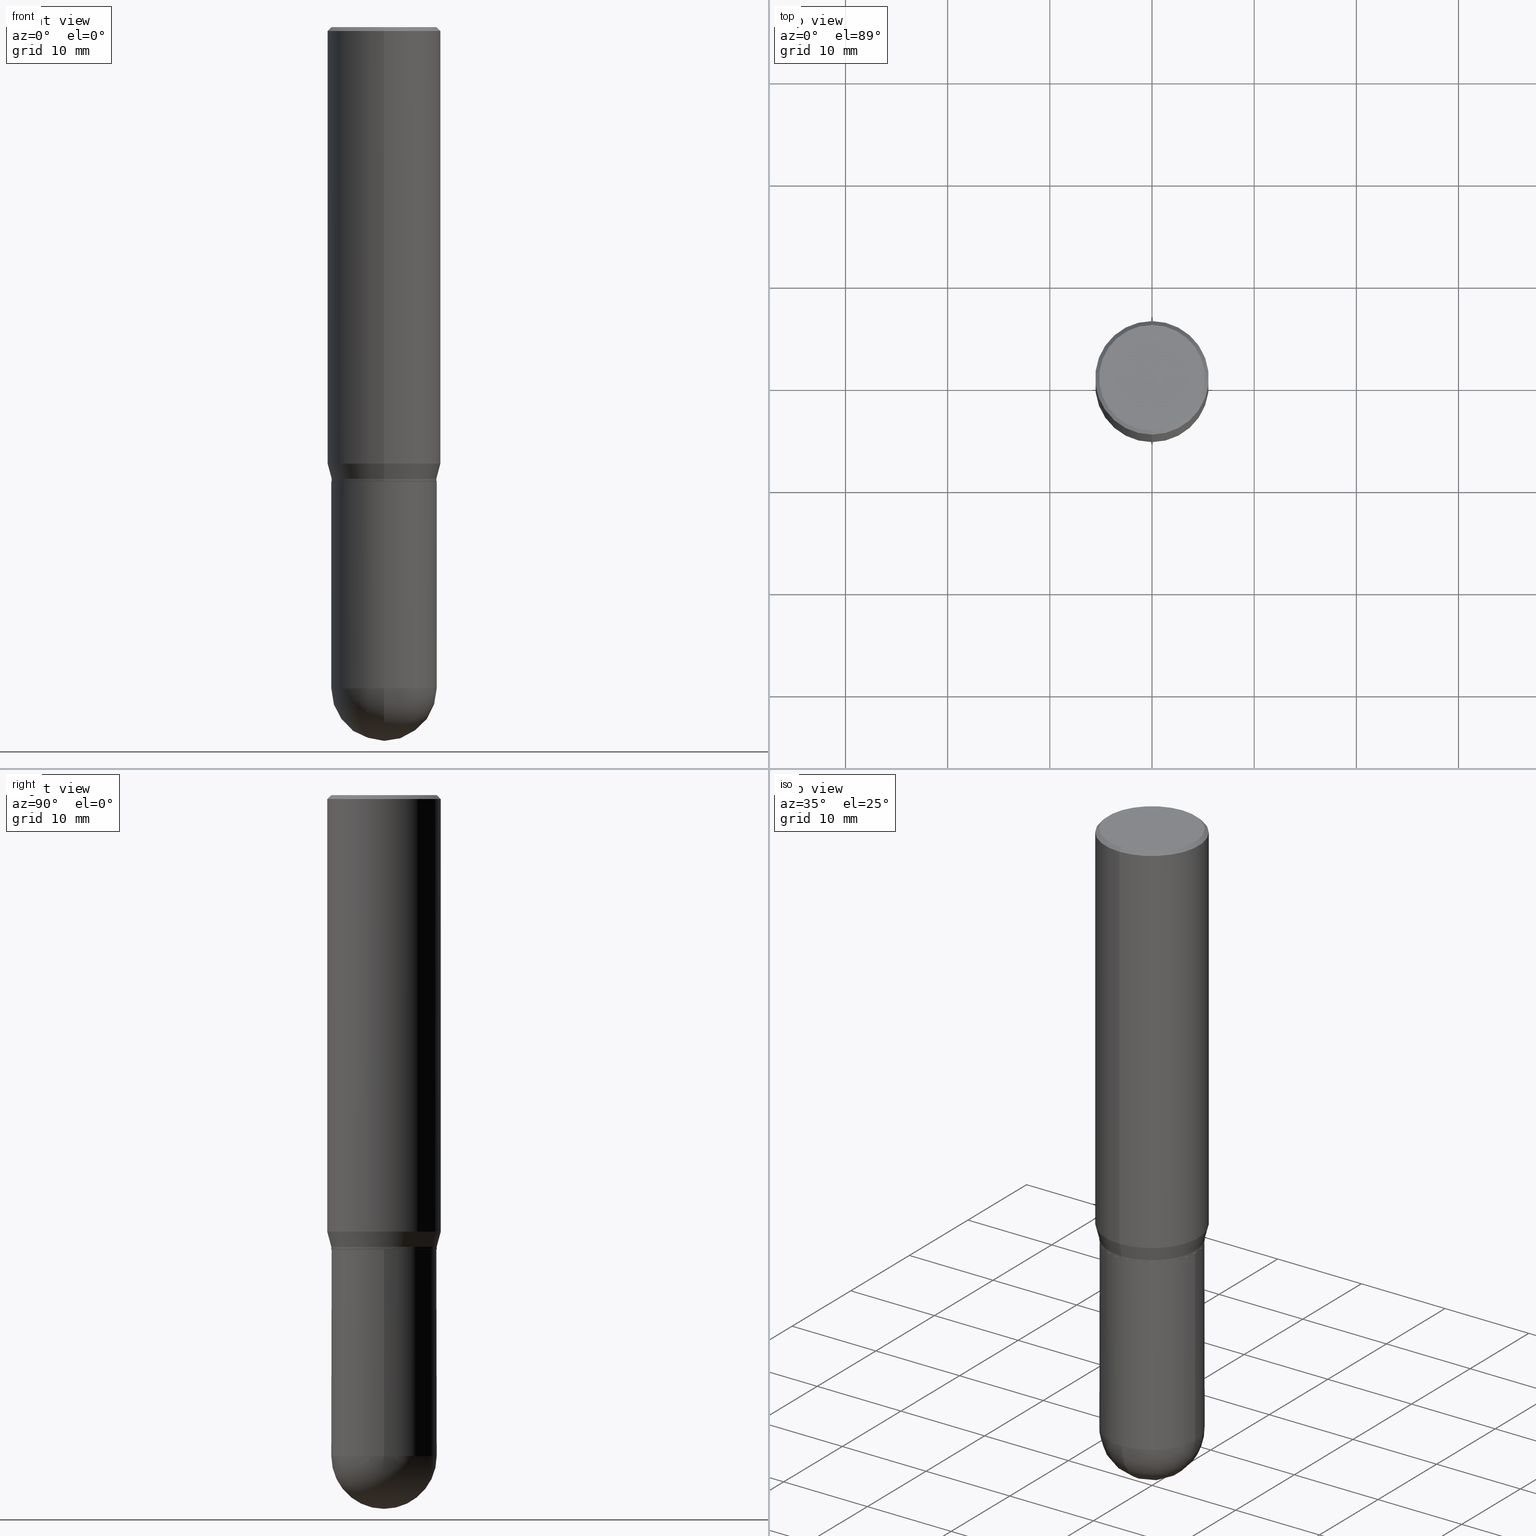
[diagram: canonical four-view strip — front | top / right | iso, engineering-drawing reading convention]
A machine part, canonical four-view strip (front | top / right | iso — engineering-drawing reading convention). The complete STEP part file that produces these views, byte-faithful:
ISO-10303-21;
HEADER;
FILE_DESCRIPTION (( 'STEP AP203' ),
    '1' );
FILE_NAME ('39352.STEP',
    '2024-03-08T12:49:42',
    ( '' ),
    ( '' ),
    'SwSTEP 2.0',
    'SolidWorks 2023',
    '' );
FILE_SCHEMA (( 'CONFIG_CONTROL_DESIGN' ));
ENDSEC;

DATA;
#1 = PRODUCT_RELATED_PRODUCT_CATEGORY ( 'detail', '', ( #188 ) ) ;
#2 = ORIENTED_EDGE ( 'NONE', *, *, #405, .F. ) ;
#3 = CIRCLE ( 'NONE', #327, 0.2030999999999999472 ) ;
#4 = CC_DESIGN_APPROVAL ( #165, ( #245 ) ) ;
#5 = APPLICATION_CONTEXT ( 'configuration controlled 3d designs of mechanical parts and assemblies' ) ;
#6 = EDGE_CURVE ( 'NONE', #292, #410, #195, .T. ) ;
#7 = DIRECTION ( 'NONE',  ( -6.982962677686265922E-15, -1.000000000000000000, 4.045184590815789415E-15 ) ) ;
#8 = ORIENTED_EDGE ( 'NONE', *, *, #179, .T. ) ;
#9 = ADVANCED_FACE ( 'NONE', ( #445 ), #491, .F. ) ;
#10 = EDGE_CURVE ( 'NONE', #170, #227, #37, .T. ) ;
#11 = ORIENTED_EDGE ( 'NONE', *, *, #288, .T. ) ;
#12 = ORIENTED_EDGE ( 'NONE', *, *, #142, .F. ) ;
#13 = DESIGN_CONTEXT ( 'detailed design', #46, 'design' ) ;
#14 = DIRECTION ( 'NONE',  ( -2.445218819430257949E-29, 3.491839334104495039E-15, 1.000000000000000000 ) ) ;
#15 = DIRECTION ( 'NONE',  ( -4.851104656540965064E-15, -0.7071067811865501263, -0.7071067811865449082 ) ) ;
#16 = DIRECTION ( 'NONE',  ( -6.982962677686266711E-15, -1.000000000000000000, 4.035225987687243463E-15 ) ) ;
#17 = EDGE_CURVE ( 'NONE', #227, #293, #390, .T. ) ;
#18 = ORIENTED_EDGE ( 'NONE', *, *, #142, .T. ) ;
#19 = AXIS2_PLACEMENT_3D ( 'NONE', #241, #364, #512 ) ;
#20 = DIRECTION ( 'NONE',  ( -2.445218819430257949E-29, 3.491839334104495039E-15, 1.000000000000000000 ) ) ;
#21 = APPROVAL_STATUS ( 'not_yet_approved' ) ;
#22 = DIRECTION ( 'NONE',  ( -2.445468806185136597E-29, 3.491481338843145583E-15, 1.000000000000000000 ) ) ;
#23 = EDGE_LOOP ( 'NONE', ( #422, #346 ) ) ;
#24 = ADVANCED_FACE ( 'NONE', ( #175 ), #344, .T. ) ;
#25 = SECURITY_CLASSIFICATION_LEVEL ( 'unclassified' ) ;
#26 = CARTESIAN_POINT ( 'NONE',  ( 1.422778645578576487E-15, 0.2037499999999999867, -7.294575224700439705E-16 ) ) ;
#27 = ORIENTED_EDGE ( 'NONE', *, *, #248, .T. ) ;
#28 = DIRECTION ( 'NONE',  ( -7.105427357601001070E-15, -1.000000000000000000, 0.000000000000000000 ) ) ;
#29 = CLOSED_SHELL ( 'NONE', ( #355, #283, #289, #24, #302 ) ) ;
#30 = CC_DESIGN_DATE_AND_TIME_ASSIGNMENT ( #100, #417, ( #254 ) ) ;
#31 = PERSON_AND_ORGANIZATION_ROLE ( 'creator' ) ;
#32 = DIRECTION ( 'NONE',  ( -2.445468806185136597E-29, 3.491481338843145583E-15, 1.000000000000000000 ) ) ;
#33 = ORIENTED_EDGE ( 'NONE', *, *, #106, .F. ) ;
#34 = CARTESIAN_POINT ( 'NONE',  ( 4.279570410823988484E-29, -6.110092342975504671E-15, -1.750000000000000000 ) ) ;
#35 = CARTESIAN_POINT ( 'NONE',  ( 8.800468775944873433E-46, -1.256731004449036415E-31, -3.599051629250672199E-17 ) ) ;
#36 = DIRECTION ( 'NONE',  ( -6.982962677686266711E-15, -1.000000000000000000, 3.491839334104494644E-15 ) ) ;
#37 = CIRCLE ( 'NONE', #486, 0.2030999999999999472 ) ;
#38 = VECTOR ( 'NONE', #426, 39.37007874015748854 ) ;
#39 = DIRECTION ( 'NONE',  ( 1.000000000000000000, -6.982962677686269866E-15, 0.000000000000000000 ) ) ;
#40 = DIRECTION ( 'NONE',  ( -6.982962677686266711E-15, -1.000000000000000000, 3.491839334104494644E-15 ) ) ;
#41 = CC_DESIGN_PERSON_AND_ORGANIZATION_ASSIGNMENT ( #456, #228, ( #245 ) ) ;
#42 = ORIENTED_EDGE ( 'NONE', *, *, #314, .F. ) ;
#43 = VECTOR ( 'NONE', #20, 39.37007874015748143 ) ;
#44 = AXIS2_PLACEMENT_3D ( 'NONE', #34, #150, #140 ) ;
#45 = CARTESIAN_POINT ( 'NONE',  ( -1.443112296328700980E-15, -0.2031000000000088845, -2.546899999999999498 ) ) ;
#46 = APPLICATION_CONTEXT ( 'configuration controlled 3d designs of mechanical parts and assemblies' ) ;
#47 = CARTESIAN_POINT ( 'NONE',  ( -1.414748238499194972E-15, -0.2026000000000061363, -1.749999999999999112 ) ) ;
#48 = EDGE_LOOP ( 'NONE', ( #349, #303, #8, #11, #276 ) ) ;
#49 = CIRCLE ( 'NONE', #472, 0.2031000000000000583 ) ;
#50 = AXIS2_PLACEMENT_3D ( 'NONE', #358, #497, #508 ) ;
#51 = CIRCLE ( 'NONE', #44, 0.2031000000000000028 ) ;
#52 = FACE_OUTER_BOUND ( 'NONE', #23, .T. ) ;
#53 = CARTESIAN_POINT ( 'NONE',  ( 0.2031000000000000028, -7.528332062813585446E-15, -1.750000000000000000 ) ) ;
#54 = APPROVAL_DATE_TIME ( #180, #182 ) ;
#55 = LINE ( 'NONE', #266, #457 ) ;
#56 = EDGE_LOOP ( 'NONE', ( #174, #382, #33, #467 ) ) ;
#57 = COORDINATED_UNIVERSAL_TIME_OFFSET ( 5, 0, .BEHIND. ) ;
#58 = DIRECTION ( 'NONE',  ( 6.982962677686266711E-15, 1.000000000000000000, 0.000000000000000000 ) ) ;
#59 =( LENGTH_UNIT ( ) NAMED_UNIT ( * ) SI_UNIT ( $, .METRE. ) );
#60 = CIRCLE ( 'NONE', #218, 0.2187500000000000000 ) ;
#61 = AXIS2_PLACEMENT_3D ( 'NONE', #133, #384, #478 ) ;
#62 = APPROVAL_STATUS ( 'not_yet_approved' ) ;
#63 = DIRECTION ( 'NONE',  ( -6.982962677686265133E-15, -1.000000000000000000, 3.746534391310989557E-15 ) ) ;
#64 = ORIENTED_EDGE ( 'NONE', *, *, #6, .F. ) ;
#65 = EDGE_CURVE ( 'NONE', #227, #170, #326, .T. ) ;
#66 = PERSON_AND_ORGANIZATION ( #473, #328 ) ;
#67 = DIRECTION ( 'NONE',  ( -2.445468806185136597E-29, 3.491481338843145583E-15, 1.000000000000000000 ) ) ;
#68 = DATE_AND_TIME ( #464, #308 ) ;
#69 = CARTESIAN_POINT ( 'NONE',  ( -0.2031000000000000583, -6.058160786108791010E-15, -2.546899999999999942 ) ) ;
#70 = DIRECTION ( 'NONE',  ( -2.445218819430257669E-29, 3.491839334104495039E-15, 1.000000000000000000 ) ) ;
#71 = ORIENTED_EDGE ( 'NONE', *, *, #151, .T. ) ;
#72 = VERTEX_POINT ( 'NONE', #454 ) ;
#73 =( NAMED_UNIT ( * ) PLANE_ANGLE_UNIT ( ) SI_UNIT ( $, .RADIAN. ) );
#74 = DIRECTION ( 'NONE',  ( -6.982962677686265133E-15, -1.000000000000000000, 3.491839334104495039E-15 ) ) ;
#75 = AXIS2_PLACEMENT_3D ( 'NONE', #287, #282, #246 ) ;
#76 = EDGE_LOOP ( 'NONE', ( #459, #27 ) ) ;
#77 = DIRECTION ( 'NONE',  ( -6.982962677686265922E-15, -1.000000000000000000, 4.045184590815789415E-15 ) ) ;
#78 = DIRECTION ( 'NONE',  ( 0.000000000000000000, 0.000000000000000000, 1.000000000000000000 ) ) ;
#79 = CARTESIAN_POINT ( 'NONE',  ( 4.254680745808648669E-29, -6.075800441341822188E-15, -1.739999999999999991 ) ) ;
#80 = AXIS2_PLACEMENT_3D ( 'NONE', #128, #449, #420 ) ;
#81 = AXIS2_PLACEMENT_3D ( 'NONE', #269, #501, #177 ) ;
#82 = LOCAL_TIME ( 7, 49, 42.00000000000000000, #387 ) ;
#83 = EDGE_CURVE ( 'NONE', #309, #271, #452, .T. ) ;
#84 = DIRECTION ( 'NONE',  ( -6.982962677686265133E-15, -1.000000000000000000, 3.491839334104495039E-15 ) ) ;
#85 = ORIENTED_EDGE ( 'NONE', *, *, #10, .T. ) ;
#86 = FACE_OUTER_BOUND ( 'NONE', #109, .T. ) ;
#87 = CC_DESIGN_APPROVAL ( #182, ( #124 ) ) ;
#88 = DIRECTION ( 'NONE',  ( -2.445218819430257109E-29, 3.491839334104495039E-15, 1.000000000000000000 ) ) ;
#89 = CIRCLE ( 'NONE', #156, 0.2026000000000000023 ) ;
#90 = CONICAL_SURFACE ( 'NONE', #395, 0.2026000000000000023, 0.7853981633974824739 ) ;
#91 = CARTESIAN_POINT ( 'NONE',  ( 1.498712265402032742E-15, 0.2030999999999938688, -1.740000000000000879 ) ) ;
#92 = CARTESIAN_POINT ( 'NONE',  ( 4.111863840197258972E-29, -5.871853995066253491E-15, -1.681593404861546848 ) ) ;
#93 = DATE_TIME_ROLE ( 'classification_date' ) ;
#94 = DIRECTION ( 'NONE',  ( -1.000000000000000000, 6.982962677686266711E-15, -4.883557194083112901E-29 ) ) ;
#95 = CARTESIAN_POINT ( 'NONE',  ( 1.443112296328762905E-15, 0.2030999999999999472, -7.091925687566227078E-16 ) ) ;
#96 = CARTESIAN_POINT ( 'NONE',  ( 4.111863840197258972E-29, -5.871853995066253491E-15, -1.681593404861546848 ) ) ;
#97 = VERTEX_POINT ( 'NONE', #488 ) ;
#98 = CLOSED_SHELL ( 'NONE', ( #482, #278, #485, #394, #380, #332, #475, #155, #9, #122, #423, #434 ) ) ;
#99 = AXIS2_PLACEMENT_3D ( 'NONE', #239, #323, #36 ) ;
#100 = DATE_AND_TIME ( #256, #421 ) ;
#101 = FACE_OUTER_BOUND ( 'NONE', #56, .T. ) ;
#102 = DIRECTION ( 'NONE',  ( 1.000000000000000000, -6.982962677686265922E-15, 4.883557194083112340E-29 ) ) ;
#103 = ORIENTED_EDGE ( 'NONE', *, *, #17, .T. ) ;
#104 = DIRECTION ( 'NONE',  ( -1.807323732225323040E-15, -0.2588190451025171868, 0.9659258262890693114 ) ) ;
#105 = EDGE_LOOP ( 'NONE', ( #85, #103, #166, #223 ) ) ;
#106 = EDGE_CURVE ( 'NONE', #309, #176, #110, .T. ) ;
#107 = PERSON_AND_ORGANIZATION ( #473, #328 ) ;
#108 = CARTESIAN_POINT ( 'NONE',  ( 4.254680745808648669E-29, -6.075800441341822188E-15, -1.739999999999999991 ) ) ;
#109 = EDGE_LOOP ( 'NONE', ( #322, #428, #183, #211 ) ) ;
#110 = CIRCLE ( 'NONE', #317, 0.2187500000000000000 ) ;
#111 = CYLINDRICAL_SURFACE ( 'NONE', #262, 0.2187500000000000000 ) ;
#112 = AXIS2_PLACEMENT_3D ( 'NONE', #242, #408, #172 ) ;
#113 = MANIFOLD_SOLID_BREP ( 'Body-Move/Copy2[1]', #29 ) ;
#114 = CARTESIAN_POINT ( 'NONE',  ( 4.279132934002950220E-29, -6.110718834682865529E-15, -1.750000000000000000 ) ) ;
#115 = CARTESIAN_POINT ( 'NONE',  ( 1.554312234475218762E-15, 0.2187500000000000000, -7.638398543353582897E-16 ) ) ;
#116 = DIRECTION ( 'NONE',  ( -6.982962677686265922E-15, -1.000000000000000000, 4.045184590815789415E-15 ) ) ;
#117 = LINE ( 'NONE', #476, #448 ) ;
#118 = FACE_OUTER_BOUND ( 'NONE', #345, .T. ) ;
#119 = CIRCLE ( 'NONE', #337, 0.2031000000000000583 ) ;
#120 = CC_DESIGN_SECURITY_CLASSIFICATION ( #124, ( #245 ) ) ;
#121 = DIRECTION ( 'NONE',  ( -2.445468806185136877E-29, 3.491481338843145188E-15, 1.000000000000000000 ) ) ;
#122 = ADVANCED_FACE ( 'NONE', ( #52 ), #494, .F. ) ;
#123 = ORIENTED_EDGE ( 'NONE', *, *, #466, .F. ) ;
#124 = SECURITY_CLASSIFICATION ( '', '', #25 ) ;
#125 = ORIENTED_EDGE ( 'NONE', *, *, #444, .T. ) ;
#126 = CC_DESIGN_PERSON_AND_ORGANIZATION_ASSIGNMENT ( #167, #31, ( #245 ) ) ;
#127 = CARTESIAN_POINT ( 'NONE',  ( 4.279132934002950220E-29, -6.110718834682865529E-15, -1.750000000000000000 ) ) ;
#128 = CARTESIAN_POINT ( 'NONE',  ( 3.667828229145395104E-31, -5.237759001156755081E-17, -0.01500000000000003587 ) ) ;
#129 = UNCERTAINTY_MEASURE_WITH_UNIT (LENGTH_MEASURE( 1.000000000000000082E-05 ), #185, 'distance_accuracy_value', 'NONE');
#130 = EDGE_LOOP ( 'NONE', ( #414, #264, #143, #184 ) ) ;
#131 = EDGE_CURVE ( 'NONE', #170, #492, #55, .T. ) ;
#132 = APPROVAL_ROLE ( '' ) ;
#133 = CARTESIAN_POINT ( 'NONE',  ( 1.418239719838123571E-15, 0.2030999999999938965, -1.750000000000000666 ) ) ;
#134 = DIRECTION ( 'NONE',  ( -2.445218819430257669E-29, 3.491839334104495039E-15, 1.000000000000000000 ) ) ;
#135 = ORIENTED_EDGE ( 'NONE', *, *, #193, .T. ) ;
#136 = CARTESIAN_POINT ( 'NONE',  ( -1.418239719838036796E-15, -0.2031000000000059424, -1.749499999999999167 ) ) ;
#137 = AXIS2_PLACEMENT_3D ( 'NONE', #385, #217, #251 ) ;
#138 = ORIENTED_EDGE ( 'NONE', *, *, #469, .F. ) ;
#139 = VECTOR ( 'NONE', #324, 39.37007874015748143 ) ;
#140 = DIRECTION ( 'NONE',  ( 1.000000000000000000, -6.982962677686269866E-15, 0.000000000000000000 ) ) ;
#141 = EDGE_LOOP ( 'NONE', ( #267, #313, #135, #338 ) ) ;
#142 = EDGE_CURVE ( 'NONE', #446, #271, #441, .T. ) ;
#143 = ORIENTED_EDGE ( 'NONE', *, *, #189, .T. ) ;
#144 = CARTESIAN_POINT ( 'NONE',  ( 0.000000000000000000, 0.000000000000000000, 0.000000000000000000 ) ) ;
#145 = ADVANCED_BREP_SHAPE_REPRESENTATION ( '39352', ( #113, #253, #219 ), #148 ) ;
#146 =( NAMED_UNIT ( * ) SI_UNIT ( $, .STERADIAN. ) SOLID_ANGLE_UNIT ( ) );
#147 = DIRECTION ( 'NONE',  ( -2.445218819430257669E-29, 3.491839334104495039E-15, 1.000000000000000000 ) ) ;
#148 =( GEOMETRIC_REPRESENTATION_CONTEXT ( 3 ) GLOBAL_UNCERTAINTY_ASSIGNED_CONTEXT ( ( #129 ) ) GLOBAL_UNIT_ASSIGNED_CONTEXT ( ( #185, #73, #146 ) ) REPRESENTATION_CONTEXT ( 'NONE', 'WORKASPACE' ) );
#149 = MECHANICAL_CONTEXT ( 'NONE', #5, 'mechanical' ) ;
#150 = DIRECTION ( 'NONE',  ( -2.445468806185136597E-29, 3.491481338843145583E-15, 1.000000000000000000 ) ) ;
#151 = EDGE_CURVE ( 'NONE', #176, #309, #60, .T. ) ;
#152 = DIRECTION ( 'NONE',  ( -2.445218819430257669E-29, 3.491839334104495039E-15, 1.000000000000000000 ) ) ;
#153 = DIRECTION ( 'NONE',  ( -2.445218819430257669E-29, 3.491839334104495039E-15, 1.000000000000000000 ) ) ;
#154 = CARTESIAN_POINT ( 'NONE',  ( -1.418239719838037782E-15, -0.2031000000000060257, -1.739999999999999103 ) ) ;
#155 = ADVANCED_FACE ( 'NONE', ( #222 ), #370, .T. ) ;
#156 = AXIS2_PLACEMENT_3D ( 'NONE', #114, #435, #116 ) ;
#157 = AXIS2_PLACEMENT_3D ( 'NONE', #461, #357, #363 ) ;
#158 = EDGE_CURVE ( 'NONE', #410, #391, #306, .T. ) ;
#159 = DIRECTION ( 'NONE',  ( -1.000000000000000000, 7.105427357601001070E-15, -4.926315508542082329E-29 ) ) ;
#160 = DIRECTION ( 'NONE',  ( 6.982962677686266711E-15, 1.000000000000000000, -2.690150658458162309E-15 ) ) ;
#161 = DIRECTION ( 'NONE',  ( -2.445218819430257669E-29, 3.491839334104495039E-15, 1.000000000000000000 ) ) ;
#162 = ORIENTED_EDGE ( 'NONE', *, *, #65, .T. ) ;
#163 = AXIS2_PLACEMENT_3D ( 'NONE', #506, #407, #7 ) ;
#164 = CC_DESIGN_APPROVAL ( #199, ( #254 ) ) ;
#165 = APPROVAL ( #171, 'UNSPECIFIED' ) ;
#166 = ORIENTED_EDGE ( 'NONE', *, *, #325, .F. ) ;
#167 = PERSON_AND_ORGANIZATION ( #473, #328 ) ;
#168 = DIRECTION ( 'NONE',  ( -6.982962677686266711E-15, -1.000000000000000000, 4.035225987687243463E-15 ) ) ;
#169 = APPROVAL_PERSON_ORGANIZATION ( #107, #199, #132 ) ;
#170 = VERTEX_POINT ( 'NONE', #136 ) ;
#171 = APPROVAL_STATUS ( 'not_yet_approved' ) ;
#172 = DIRECTION ( 'NONE',  ( -6.982962677686265922E-15, -1.000000000000000000, 4.045184590815789415E-15 ) ) ;
#173 = EDGE_LOOP ( 'NONE', ( #249, #386, #365, #138 ) ) ;
#174 = ORIENTED_EDGE ( 'NONE', *, *, #325, .T. ) ;
#175 = FACE_OUTER_BOUND ( 'NONE', #204, .T. ) ;
#176 = VERTEX_POINT ( 'NONE', #305 ) ;
#177 = DIRECTION ( 'NONE',  ( 1.000000000000000000, -6.982962677686266711E-15, 4.876176775795935793E-29 ) ) ;
#178 = DIRECTION ( 'NONE',  ( -6.982962677686265133E-15, -1.000000000000000000, 3.746534391310989557E-15 ) ) ;
#179 = EDGE_CURVE ( 'NONE', #442, #255, #49, .T. ) ;
#180 = DATE_AND_TIME ( #493, #82 ) ;
#181 = FACE_OUTER_BOUND ( 'NONE', #141, .T. ) ;
#182 = APPROVAL ( #62, 'UNSPECIFIED' ) ;
#183 = ORIENTED_EDGE ( 'NONE', *, *, #10, .F. ) ;
#184 = ORIENTED_EDGE ( 'NONE', *, *, #65, .F. ) ;
#185 =( CONVERSION_BASED_UNIT ( 'INCH', #381 ) LENGTH_UNIT ( ) NAMED_UNIT ( #389 ) );
#186 = CARTESIAN_POINT ( 'NONE',  ( 1.439559582650005591E-15, 0.2025999999999938961, -1.750000000000000666 ) ) ;
#187 = LINE ( 'NONE', #197, #321 ) ;
#188 = PRODUCT ( '39352', '39352', '', ( #149 ) ) ;
#189 = EDGE_CURVE ( 'NONE', #299, #170, #398, .T. ) ;
#190 = CYLINDRICAL_SURFACE ( 'NONE', #350, 0.2031000000000000028 ) ;
#191 = DIRECTION ( 'NONE',  ( -6.982962677686265133E-15, -1.000000000000000000, 3.491839334104495039E-15 ) ) ;
#192 = ORIENTED_EDGE ( 'NONE', *, *, #433, .T. ) ;
#193 = EDGE_CURVE ( 'NONE', #492, #309, #187, .T. ) ;
#194 = DIRECTION ( 'NONE',  ( 4.937700262164548831E-15, 0.7071067811865452413, -0.7071067811865497932 ) ) ;
#195 = CIRCLE ( 'NONE', #505, 0.2030999999999999472 ) ;
#196 = AXIS2_PLACEMENT_3D ( 'NONE', #235, #318, #504 ) ;
#197 = CARTESIAN_POINT ( 'NONE',  ( -1.418239719838037782E-15, -0.2031000000000060257, -1.739999999999999103 ) ) ;
#198 = CYLINDRICAL_SURFACE ( 'NONE', #99, 0.2030999999999999472 ) ;
#199 = APPROVAL ( #21, 'UNSPECIFIED' ) ;
#200 = CARTESIAN_POINT ( 'NONE',  ( 0.2031000000000000583, -8.919512802275635677E-15, -2.546899999999999942 ) ) ;
#201 = FACE_OUTER_BOUND ( 'NONE', #173, .T. ) ;
#202 = EDGE_CURVE ( 'NONE', #72, #299, #89, .T. ) ;
#203 = ORIENTED_EDGE ( 'NONE', *, *, #342, .F. ) ;
#204 = EDGE_LOOP ( 'NONE', ( #238, #330, #495, #341 ) ) ;
#205 = CARTESIAN_POINT ( 'NONE',  ( 6.210996075139691695E-29, -8.917326398390289827E-15, -2.546899999999999942 ) ) ;
#206 = CONICAL_SURFACE ( 'NONE', #112, 0.2026000000000000023, 0.7853981633974824739 ) ;
#207 = CYLINDRICAL_SURFACE ( 'NONE', #430, 0.2030999999999999472 ) ;
#208 = CIRCLE ( 'NONE', #499, 0.2030999999999999472 ) ;
#209 = CC_DESIGN_PERSON_AND_ORGANIZATION_ASSIGNMENT ( #212, #216, ( #254 ) ) ;
#210 = CARTESIAN_POINT ( 'NONE',  ( 6.210996075139691695E-29, -8.917326398390289827E-15, -2.546899999999999942 ) ) ;
#211 = ORIENTED_EDGE ( 'NONE', *, *, #189, .F. ) ;
#212 = PERSON_AND_ORGANIZATION ( #473, #328 ) ;
#213 = CARTESIAN_POINT ( 'NONE',  ( 6.228364502472924746E-29, -8.892453821899607499E-15, -2.546899999999999942 ) ) ;
#214 = ORIENTED_EDGE ( 'NONE', *, *, #511, .F. ) ;
#215 = EDGE_CURVE ( 'NONE', #255, #410, #447, .T. ) ;
#216 = PERSON_AND_ORGANIZATION_ROLE ( 'creator' ) ;
#217 = DIRECTION ( 'NONE',  ( 2.445218819430257669E-29, -3.491839334104495039E-15, -1.000000000000000000 ) ) ;
#218 = AXIS2_PLACEMENT_3D ( 'NONE', #92, #298, #63 ) ;
#219 = AXIS2_PLACEMENT_3D ( 'NONE', #399, #78, #507 ) ;
#220 = ORIENTED_EDGE ( 'NONE', *, *, #288, .F. ) ;
#221 = SHAPE_DEFINITION_REPRESENTATION ( #427, #145 ) ;
#222 = FACE_OUTER_BOUND ( 'NONE', #412, .T. ) ;
#223 = ORIENTED_EDGE ( 'NONE', *, *, #131, .F. ) ;
#224 = EDGE_CURVE ( 'NONE', #293, #492, #371, .T. ) ;
#225 = COORDINATED_UNIVERSAL_TIME_OFFSET ( 5, 0, .BEHIND. ) ;
#226 = DIRECTION ( 'NONE',  ( -1.000000000000000000, 6.982962677686266711E-15, -4.883557194083112901E-29 ) ) ;
#227 = VERTEX_POINT ( 'NONE', #360 ) ;
#228 = PERSON_AND_ORGANIZATION_ROLE ( 'design_supplier' ) ;
#229 = CARTESIAN_POINT ( 'NONE',  ( 6.228364502472924746E-29, -8.892453821899607499E-15, -2.546899999999999942 ) ) ;
#230 = CIRCLE ( 'NONE', #75, 0.2187500000000000000 ) ;
#231 = EDGE_LOOP ( 'NONE', ( #453, #367 ) ) ;
#232 = CARTESIAN_POINT ( 'NONE',  ( -1.527523085743829428E-15, -0.2187500000000058287, -1.681593404861545960 ) ) ;
#233 = DIRECTION ( 'NONE',  ( 1.000000000000000000, -6.982962677686262766E-15, 0.000000000000000000 ) ) ;
#234 = ORIENTED_EDGE ( 'NONE', *, *, #83, .F. ) ;
#235 = CARTESIAN_POINT ( 'NONE',  ( 4.254680745808648669E-29, -6.075800441341822188E-15, -1.739999999999999991 ) ) ;
#236 = DIRECTION ( 'NONE',  ( -2.445468806185136597E-29, 3.491481338843145583E-15, 1.000000000000000000 ) ) ;
#237 = EDGE_CURVE ( 'NONE', #293, #176, #406, .T. ) ;
#238 = ORIENTED_EDGE ( 'NONE', *, *, #433, .F. ) ;
#239 = CARTESIAN_POINT ( 'NONE',  ( 0.000000000000000000, 0.000000000000000000, 0.000000000000000000 ) ) ;
#240 = VECTOR ( 'NONE', #279, 39.37007874015748143 ) ;
#241 = CARTESIAN_POINT ( 'NONE',  ( 3.667828229145395104E-31, -5.237759001156755081E-17, -0.01500000000000003587 ) ) ;
#242 = CARTESIAN_POINT ( 'NONE',  ( 4.279132934002950220E-29, -6.110718834682865529E-15, -1.750000000000000000 ) ) ;
#243 = AXIS2_PLACEMENT_3D ( 'NONE', #301, #419, #168 ) ;
#244 = AXIS2_PLACEMENT_3D ( 'NONE', #35, #152, #191 ) ;
#245 = PRODUCT_DEFINITION_FORMATION_WITH_SPECIFIED_SOURCE ( 'ANY', '', #188, .NOT_KNOWN. ) ;
#246 = DIRECTION ( 'NONE',  ( -6.982962677686265133E-15, -1.000000000000000000, 3.492862791899308071E-15 ) ) ;
#247 = ORIENTED_EDGE ( 'NONE', *, *, #415, .F. ) ;
#248 = EDGE_CURVE ( 'NONE', #498, #503, #436, .T. ) ;
#249 = ORIENTED_EDGE ( 'NONE', *, *, #274, .F. ) ;
#250 = VECTOR ( 'NONE', #316, 39.37007874015748854 ) ;
#251 = DIRECTION ( 'NONE',  ( 6.982962677686265133E-15, 1.000000000000000000, -3.492862791899308071E-15 ) ) ;
#252 = AXIS2_PLACEMENT_3D ( 'NONE', #79, #70, #502 ) ;
#253 = MANIFOLD_SOLID_BREP ( 'Body-Move/Copy2[2]', #98 ) ;
#254 = PRODUCT_DEFINITION ( 'UNKNOWN', '', #245, #13 ) ;
#255 = VERTEX_POINT ( 'NONE', #200 ) ;
#256 = CALENDAR_DATE ( 2024, 8, 3 ) ;
#257 = LINE ( 'NONE', #418, #139 ) ;
#258 = DIRECTION ( 'NONE',  ( 1.000000000000000000, -6.982962677686262766E-15, 0.000000000000000000 ) ) ;
#259 = ORIENTED_EDGE ( 'NONE', *, *, #158, .T. ) ;
#260 = DIRECTION ( 'NONE',  ( -2.445218819430257669E-29, 3.491839334104495039E-15, 1.000000000000000000 ) ) ;
#261 = ORIENTED_EDGE ( 'NONE', *, *, #314, .T. ) ;
#262 = AXIS2_PLACEMENT_3D ( 'NONE', #281, #356, #74 ) ;
#263 = APPROVAL_PERSON_ORGANIZATION ( #66, #165, #383 ) ;
#264 = ORIENTED_EDGE ( 'NONE', *, *, #202, .T. ) ;
#265 = APPROVAL_ROLE ( '' ) ;
#266 = CARTESIAN_POINT ( 'NONE',  ( -1.418239719838080381E-15, -0.2030999999999999472, 7.091925687566227078E-16 ) ) ;
#267 = ORIENTED_EDGE ( 'NONE', *, *, #237, .F. ) ;
#268 = PERSON_AND_ORGANIZATION ( #473, #328 ) ;
#269 = CARTESIAN_POINT ( 'NONE',  ( 0.000000000000000000, 0.000000000000000000, 0.000000000000000000 ) ) ;
#270 = CARTESIAN_POINT ( 'NONE',  ( 1.443112296328805307E-15, 0.2030999999999938688, -1.740000000000000879 ) ) ;
#271 = VERTEX_POINT ( 'NONE', #401 ) ;
#272 = CALENDAR_DATE ( 2024, 8, 3 ) ;
#273 = DIRECTION ( 'NONE',  ( -2.445218819430257669E-29, 3.491839334104495039E-15, 1.000000000000000000 ) ) ;
#274 = EDGE_CURVE ( 'NONE', #311, #97, #470, .T. ) ;
#275 = CONICAL_SURFACE ( 'NONE', #19, 0.2187500000000000000, 0.7853981633974485010 ) ;
#276 = ORIENTED_EDGE ( 'NONE', *, *, #248, .F. ) ;
#277 = CARTESIAN_POINT ( 'NONE',  ( 4.279132934002950220E-29, -6.110718834682865529E-15, -1.750000000000000000 ) ) ;
#278 = ADVANCED_FACE ( 'NONE', ( #86 ), #206, .T. ) ;
#279 = DIRECTION ( 'NONE',  ( 1.839019923739593216E-15, 0.2588190451025239591, 0.9659258262890674240 ) ) ;
#280 = APPLICATION_PROTOCOL_DEFINITION ( 'international standard', 'config_control_design', 1994, #5 ) ;
#281 = CARTESIAN_POINT ( 'NONE',  ( 0.000000000000000000, 0.000000000000000000, 0.000000000000000000 ) ) ;
#282 = DIRECTION ( 'NONE',  ( -2.445218819430257669E-29, 3.491839334104495039E-15, 1.000000000000000000 ) ) ;
#283 = ADVANCED_FACE ( 'NONE', ( #339 ), #368, .T. ) ;
#284 = AXIS2_PLACEMENT_3D ( 'NONE', #213, #22, #258 ) ;
#285 = CYLINDRICAL_SURFACE ( 'NONE', #409, 0.2187500000000000000 ) ;
#286 = AXIS2_PLACEMENT_3D ( 'NONE', #509, #236, #39 ) ;
#287 = CARTESIAN_POINT ( 'NONE',  ( 3.667828229145395104E-31, -5.237759001156755081E-17, -0.01500000000000003587 ) ) ;
#288 = EDGE_CURVE ( 'NONE', #255, #503, #257, .T. ) ;
#289 = ADVANCED_FACE ( 'NONE', ( #411 ), #490, .F. ) ;
#290 = LOCAL_TIME ( 7, 49, 42.00000000000000000, #225 ) ;
#291 = ORIENTED_EDGE ( 'NONE', *, *, #17, .F. ) ;
#292 = VERTEX_POINT ( 'NONE', #294 ) ;
#293 = VERTEX_POINT ( 'NONE', #91 ) ;
#294 = CARTESIAN_POINT ( 'NONE',  ( 6.716355003342508555E-29, -9.614009970063991023E-15, -2.750000000000000000 ) ) ;
#295 = DIRECTION ( 'NONE',  ( -6.982962677686265922E-15, -1.000000000000000000, 3.491839334104495039E-15 ) ) ;
#296 = CIRCLE ( 'NONE', #413, 0.2037499999999999867 ) ;
#297 = APPROVAL_DATE_TIME ( #304, #165 ) ;
#298 = DIRECTION ( 'NONE',  ( -2.445218819430257669E-29, 3.491839334104495039E-15, 1.000000000000000000 ) ) ;
#299 = VERTEX_POINT ( 'NONE', #47 ) ;
#300 = CALENDAR_DATE ( 2024, 8, 3 ) ;
#301 = CARTESIAN_POINT ( 'NONE',  ( 4.277910324593235451E-29, -6.108972915015813323E-15, -1.749500000000000055 ) ) ;
#302 = ADVANCED_FACE ( 'NONE', ( #460 ), #388, .T. ) ;
#303 = ORIENTED_EDGE ( 'NONE', *, *, #405, .T. ) ;
#304 = DATE_AND_TIME ( #300, #290 ) ;
#305 = CARTESIAN_POINT ( 'NONE',  ( 1.554312234475260177E-15, 0.2187499999999941436, -1.681593404861547736 ) ) ;
#306 = CIRCLE ( 'NONE', #284, 0.2031000000000000583 ) ;
#307 = AXIS2_PLACEMENT_3D ( 'NONE', #451, #94, #160 ) ;
#308 = LOCAL_TIME ( 7, 49, 42.00000000000000000, #500 ) ;
#309 = VERTEX_POINT ( 'NONE', #232 ) ;
#310 = LINE ( 'NONE', #186, #38 ) ;
#311 = VERTEX_POINT ( 'NONE', #393 ) ;
#312 = DIRECTION ( 'NONE',  ( 1.000000000000000000, -6.982962677686262766E-15, 0.000000000000000000 ) ) ;
#313 = ORIENTED_EDGE ( 'NONE', *, *, #224, .T. ) ;
#314 = EDGE_CURVE ( 'NONE', #176, #446, #402, .T. ) ;
#315 = DIRECTION ( 'NONE',  ( -6.982962677686265133E-15, -1.000000000000000000, 3.491839334104495039E-15 ) ) ;
#316 = DIRECTION ( 'NONE',  ( -4.937700262164715281E-15, -0.7071067811865691111, 0.7071067811865257013 ) ) ;
#317 = AXIS2_PLACEMENT_3D ( 'NONE', #96, #260, #178 ) ;
#318 = DIRECTION ( 'NONE',  ( -2.445218819430257669E-29, 3.491839334104495039E-15, 1.000000000000000000 ) ) ;
#319 = DIRECTION ( 'NONE',  ( 1.000000000000000000, -6.982962677686266711E-15, 4.876176775795935793E-29 ) ) ;
#320 = FACE_OUTER_BOUND ( 'NONE', #105, .T. ) ;
#321 = VECTOR ( 'NONE', #104, 39.37007874015748854 ) ;
#322 = ORIENTED_EDGE ( 'NONE', *, *, #455, .T. ) ;
#323 = DIRECTION ( 'NONE',  ( -2.445218819430257669E-29, 3.491839334104495039E-15, 1.000000000000000000 ) ) ;
#324 = DIRECTION ( 'NONE',  ( -2.445468806185136877E-29, 3.491481338843145188E-15, 1.000000000000000000 ) ) ;
#325 = EDGE_CURVE ( 'NONE', #492, #293, #208, .T. ) ;
#326 = CIRCLE ( 'NONE', #243, 0.2030999999999999472 ) ;
#327 = AXIS2_PLACEMENT_3D ( 'NONE', #205, #159, #28 ) ;
#328 = ORGANIZATION ( 'UNSPECIFIED', 'UNSPECIFIED', '' ) ;
#329 = EDGE_LOOP ( 'NONE', ( #64, #192, #2, #336 ) ) ;
#330 = ORIENTED_EDGE ( 'NONE', *, *, #6, .T. ) ;
#331 = CARTESIAN_POINT ( 'NONE',  ( -0.2031000000000000028, -6.058160786108792588E-15, -1.750000000000000000 ) ) ;
#332 = ADVANCED_FACE ( 'NONE', ( #181 ), #351, .T. ) ;
#333 = CARTESIAN_POINT ( 'NONE',  ( -1.527523085743870449E-15, -0.2187500000000000000, 7.638398543353582897E-16 ) ) ;
#334 = COORDINATED_UNIVERSAL_TIME_OFFSET ( 5, 0, .BEHIND. ) ;
#335 = AXIS2_PLACEMENT_3D ( 'NONE', #210, #226, #483 ) ;
#336 = ORIENTED_EDGE ( 'NONE', *, *, #158, .F. ) ;
#337 = AXIS2_PLACEMENT_3D ( 'NONE', #229, #32, #312 ) ;
#338 = ORIENTED_EDGE ( 'NONE', *, *, #151, .F. ) ;
#339 = FACE_OUTER_BOUND ( 'NONE', #329, .T. ) ;
#340 = CARTESIAN_POINT ( 'NONE',  ( 4.277910324593235451E-29, -6.108972915015813323E-15, -1.749500000000000055 ) ) ;
#341 = ORIENTED_EDGE ( 'NONE', *, *, #179, .F. ) ;
#342 = EDGE_CURVE ( 'NONE', #503, #498, #51, .T. ) ;
#343 = PERSON_AND_ORGANIZATION_ROLE ( 'classification_officer' ) ;
#344 = SPHERICAL_SURFACE ( 'NONE', #335, 0.2030999999999999472 ) ;
#345 = EDGE_LOOP ( 'NONE', ( #291, #162, #489, #443 ) ) ;
#346 = ORIENTED_EDGE ( 'NONE', *, *, #202, .F. ) ;
#347 = APPROVAL_DATE_TIME ( #68, #199 ) ;
#348 = DIRECTION ( 'NONE',  ( -6.982962677686266711E-15, -1.000000000000000000, 4.035225987687243463E-15 ) ) ;
#349 = ORIENTED_EDGE ( 'NONE', *, *, #444, .F. ) ;
#350 = AXIS2_PLACEMENT_3D ( 'NONE', #144, #471, #319 ) ;
#351 = CONICAL_SURFACE ( 'NONE', #50, 0.2030999999999999472, 0.2617993877991492413 ) ;
#352 = EDGE_LOOP ( 'NONE', ( #477, #261, #123, #234 ) ) ;
#353 = PERSON_AND_ORGANIZATION_ROLE ( 'design_owner' ) ;
#354 = FACE_OUTER_BOUND ( 'NONE', #361, .T. ) ;
#355 = ADVANCED_FACE ( 'NONE', ( #354 ), #190, .T. ) ;
#356 = DIRECTION ( 'NONE',  ( -2.445218819430257669E-29, 3.491839334104495039E-15, 1.000000000000000000 ) ) ;
#357 = DIRECTION ( 'NONE',  ( -2.445468806185136597E-29, 3.491481338843145583E-15, 1.000000000000000000 ) ) ;
#358 = CARTESIAN_POINT ( 'NONE',  ( 4.254680745808648669E-29, -6.075800441341822188E-15, -1.739999999999999991 ) ) ;
#359 = CARTESIAN_POINT ( 'NONE',  ( 0.000000000000000000, 0.000000000000000000, 0.000000000000000000 ) ) ;
#360 = CARTESIAN_POINT ( 'NONE',  ( 1.443112296328806293E-15, 0.2030999999999939243, -1.749500000000000721 ) ) ;
#361 = EDGE_LOOP ( 'NONE', ( #259, #125, #203, #220, #416 ) ) ;
#362 = CARTESIAN_POINT ( 'NONE',  ( 1.554312234475260375E-15, 0.2187499999999999167, -0.01500000000000080089 ) ) ;
#363 = DIRECTION ( 'NONE',  ( 1.000000000000000000, -6.982962677686262766E-15, 0.000000000000000000 ) ) ;
#364 = DIRECTION ( 'NONE',  ( 2.445218819430257669E-29, -3.491839334104495039E-15, -1.000000000000000000 ) ) ;
#365 = ORIENTED_EDGE ( 'NONE', *, *, #466, .T. ) ;
#366 = VECTOR ( 'NONE', #194, 39.37007874015748143 ) ;
#367 = ORIENTED_EDGE ( 'NONE', *, *, #274, .T. ) ;
#368 = SPHERICAL_SURFACE ( 'NONE', #307, 0.2030999999999999472 ) ;
#369 = EDGE_CURVE ( 'NONE', #72, #227, #310, .T. ) ;
#370 = CONICAL_SURFACE ( 'NONE', #137, 0.2187500000000000000, 0.7853981633974485010 ) ;
#371 = CIRCLE ( 'NONE', #252, 0.2030999999999999472 ) ;
#372 = LOCAL_TIME ( 7, 49, 42.00000000000000000, #57 ) ;
#373 = CC_DESIGN_DATE_AND_TIME_ASSIGNMENT ( #377, #93, ( #124 ) ) ;
#374 = DIRECTION ( 'NONE',  ( 6.982962677686265922E-15, 1.000000000000000000, -3.491839334104495039E-15 ) ) ;
#375 = CARTESIAN_POINT ( 'NONE',  ( -1.500733937012521740E-15, -0.2187500000000000555, -0.01499999999999927260 ) ) ;
#376 = DIRECTION ( 'NONE',  ( -2.445218819430257949E-29, 3.491839334104495039E-15, 1.000000000000000000 ) ) ;
#377 = DATE_AND_TIME ( #272, #372 ) ;
#378 = AXIS2_PLACEMENT_3D ( 'NONE', #127, #88, #295 ) ;
#379 = DIRECTION ( 'NONE',  ( 2.445218819430257109E-29, -3.491839334104495039E-15, -1.000000000000000000 ) ) ;
#380 = ADVANCED_FACE ( 'NONE', ( #101 ), #474, .T. ) ;
#381 = LENGTH_MEASURE_WITH_UNIT ( LENGTH_MEASURE( 0.02539999999999999897 ), #59 );
#382 = ORIENTED_EDGE ( 'NONE', *, *, #237, .T. ) ;
#383 = APPROVAL_ROLE ( '' ) ;
#384 = DIRECTION ( 'NONE',  ( 2.438088387897960049E-29, -3.491481338843145188E-15, -1.000000000000000000 ) ) ;
#385 = CARTESIAN_POINT ( 'NONE',  ( 3.667828229145395104E-31, -5.237759001156755081E-17, -0.01500000000000003587 ) ) ;
#386 = ORIENTED_EDGE ( 'NONE', *, *, #511, .T. ) ;
#387 = COORDINATED_UNIVERSAL_TIME_OFFSET ( 5, 0, .BEHIND. ) ;
#388 = CYLINDRICAL_SURFACE ( 'NONE', #81, 0.2031000000000000028 ) ;
#389 = DIMENSIONAL_EXPONENTS ( 1.000000000000000000, 0.000000000000000000, 0.000000000000000000, 0.000000000000000000, 0.000000000000000000, 0.000000000000000000, 0.000000000000000000 ) ;
#390 = LINE ( 'NONE', #95, #43 ) ;
#391 = VERTEX_POINT ( 'NONE', #69 ) ;
#392 = PERSON_AND_ORGANIZATION ( #473, #328 ) ;
#393 = CARTESIAN_POINT ( 'NONE',  ( -1.449280202029235538E-15, -0.2037499999999999867, 6.754717480312840046E-16 ) ) ;
#394 = ADVANCED_FACE ( 'NONE', ( #468 ), #111, .T. ) ;
#395 = AXIS2_PLACEMENT_3D ( 'NONE', #277, #431, #77 ) ;
#396 = EDGE_LOOP ( 'NONE', ( #42, #71, #440, #12 ) ) ;
#397 = FACE_OUTER_BOUND ( 'NONE', #130, .T. ) ;
#398 = LINE ( 'NONE', #432, #250 ) ;
#399 = CARTESIAN_POINT ( 'NONE',  ( 0.000000000000000000, 0.000000000000000000, 0.000000000000000000 ) ) ;
#400 = DIRECTION ( 'NONE',  ( -2.445218819430257949E-29, 3.491839334104495039E-15, 1.000000000000000000 ) ) ;
#401 = CARTESIAN_POINT ( 'NONE',  ( -1.527523085743870054E-15, -0.2187500000000000555, -0.01499999999999927260 ) ) ;
#402 = LINE ( 'NONE', #115, #404 ) ;
#403 = VECTOR ( 'NONE', #14, 39.37007874015748143 ) ;
#404 = VECTOR ( 'NONE', #400, 39.37007874015748143 ) ;
#405 = EDGE_CURVE ( 'NONE', #391, #442, #119, .T. ) ;
#406 = LINE ( 'NONE', #270, #240 ) ;
#407 = DIRECTION ( 'NONE',  ( -2.445218819430257669E-29, 3.491839334104495039E-15, 1.000000000000000000 ) ) ;
#408 = DIRECTION ( 'NONE',  ( -2.445218819430257669E-29, 3.491839334104495039E-15, 1.000000000000000000 ) ) ;
#409 = AXIS2_PLACEMENT_3D ( 'NONE', #359, #153, #84 ) ;
#410 = VERTEX_POINT ( 'NONE', #465 ) ;
#411 = FACE_OUTER_BOUND ( 'NONE', #76, .T. ) ;
#412 = EDGE_LOOP ( 'NONE', ( #214, #247, #463, #18 ) ) ;
#413 = AXIS2_PLACEMENT_3D ( 'NONE', #429, #147, #315 ) ;
#414 = ORIENTED_EDGE ( 'NONE', *, *, #369, .F. ) ;
#415 = EDGE_CURVE ( 'NONE', #97, #311, #296, .T. ) ;
#416 = ORIENTED_EDGE ( 'NONE', *, *, #215, .T. ) ;
#417 = DATE_TIME_ROLE ( 'creation_date' ) ;
#418 = CARTESIAN_POINT ( 'NONE',  ( 0.2031000000000000028, -1.418239719838080775E-15, 9.903515031641546145E-30 ) ) ;
#419 = DIRECTION ( 'NONE',  ( -2.445218819430257669E-29, 3.491839334104495039E-15, 1.000000000000000000 ) ) ;
#420 = DIRECTION ( 'NONE',  ( -6.982962677686265133E-15, -1.000000000000000000, 3.492862791899308071E-15 ) ) ;
#421 = LOCAL_TIME ( 7, 49, 42.00000000000000000, #334 ) ;
#422 = ORIENTED_EDGE ( 'NONE', *, *, #455, .F. ) ;
#423 = ADVANCED_FACE ( 'NONE', ( #397 ), #90, .T. ) ;
#424 = CARTESIAN_POINT ( 'NONE',  ( 6.228364502472924746E-29, -8.892453821899607499E-15, -2.546899999999999942 ) ) ;
#425 = APPLICATION_PROTOCOL_DEFINITION ( 'international standard', 'config_control_design', 1994, #46 ) ;
#426 = DIRECTION ( 'NONE',  ( 5.024295867788231995E-15, 0.7071067811865739960, 0.7071067811865208164 ) ) ;
#427 = PRODUCT_DEFINITION_SHAPE ( 'NONE', 'NONE',  #254 ) ;
#428 = ORIENTED_EDGE ( 'NONE', *, *, #369, .T. ) ;
#429 = CARTESIAN_POINT ( 'NONE',  ( 8.800468775944873433E-46, -1.256731004449036415E-31, -3.599051629250672199E-17 ) ) ;
#430 = AXIS2_PLACEMENT_3D ( 'NONE', #437, #161, #40 ) ;
#431 = DIRECTION ( 'NONE',  ( -2.445218819430257669E-29, 3.491839334104495039E-15, 1.000000000000000000 ) ) ;
#432 = CARTESIAN_POINT ( 'NONE',  ( -1.414748238499194972E-15, -0.2026000000000061363, -1.749999999999999112 ) ) ;
#433 = EDGE_CURVE ( 'NONE', #292, #442, #3, .T. ) ;
#434 = ADVANCED_FACE ( 'NONE', ( #118 ), #198, .T. ) ;
#435 = DIRECTION ( 'NONE',  ( -2.445218819430257669E-29, 3.491839334104495039E-15, 1.000000000000000000 ) ) ;
#436 = CIRCLE ( 'NONE', #286, 0.2031000000000000028 ) ;
#437 = CARTESIAN_POINT ( 'NONE',  ( 0.000000000000000000, 0.000000000000000000, 0.000000000000000000 ) ) ;
#438 = CARTESIAN_POINT ( 'NONE',  ( 1.527523085743871040E-15, 0.2187499999999999167, -0.01500000000000080089 ) ) ;
#439 = LINE ( 'NONE', #438, #366 ) ;
#440 = ORIENTED_EDGE ( 'NONE', *, *, #83, .T. ) ;
#441 = CIRCLE ( 'NONE', #80, 0.2187500000000000000 ) ;
#442 = VERTEX_POINT ( 'NONE', #45 ) ;
#443 = ORIENTED_EDGE ( 'NONE', *, *, #224, .F. ) ;
#444 = EDGE_CURVE ( 'NONE', #391, #498, #117, .T. ) ;
#445 = FACE_OUTER_BOUND ( 'NONE', #231, .T. ) ;
#446 = VERTEX_POINT ( 'NONE', #362 ) ;
#447 = CIRCLE ( 'NONE', #157, 0.2031000000000000583 ) ;
#448 = VECTOR ( 'NONE', #121, 39.37007874015748143 ) ;
#449 = DIRECTION ( 'NONE',  ( -2.445218819430257669E-29, 3.491839334104495039E-15, 1.000000000000000000 ) ) ;
#450 = LINE ( 'NONE', #375, #487 ) ;
#451 = CARTESIAN_POINT ( 'NONE',  ( 6.210996075139691695E-29, -8.917326398390289827E-15, -2.546899999999999942 ) ) ;
#452 = LINE ( 'NONE', #333, #403 ) ;
#453 = ORIENTED_EDGE ( 'NONE', *, *, #415, .T. ) ;
#454 = CARTESIAN_POINT ( 'NONE',  ( 1.441335939489405449E-15, 0.2025999999999938961, -1.750000000000000666 ) ) ;
#455 = EDGE_CURVE ( 'NONE', #299, #72, #480, .T. ) ;
#456 = PERSON_AND_ORGANIZATION ( #473, #328 ) ;
#457 = VECTOR ( 'NONE', #376, 39.37007874015748143 ) ;
#458 = CARTESIAN_POINT ( 'NONE',  ( 6.210996075139691695E-29, -8.917326398390289827E-15, -2.546899999999999942 ) ) ;
#459 = ORIENTED_EDGE ( 'NONE', *, *, #342, .T. ) ;
#460 = FACE_OUTER_BOUND ( 'NONE', #48, .T. ) ;
#461 = CARTESIAN_POINT ( 'NONE',  ( 6.228364502472924746E-29, -8.892453821899607499E-15, -2.546899999999999942 ) ) ;
#462 = CC_DESIGN_PERSON_AND_ORGANIZATION_ASSIGNMENT ( #392, #343, ( #124 ) ) ;
#463 = ORIENTED_EDGE ( 'NONE', *, *, #469, .T. ) ;
#464 = CALENDAR_DATE ( 2024, 8, 3 ) ;
#465 = CARTESIAN_POINT ( 'NONE',  ( 1.418239719838142898E-15, 0.2030999999999910932, -2.546900000000000830 ) ) ;
#466 = EDGE_CURVE ( 'NONE', #271, #446, #230, .T. ) ;
#467 = ORIENTED_EDGE ( 'NONE', *, *, #193, .F. ) ;
#468 = FACE_OUTER_BOUND ( 'NONE', #352, .T. ) ;
#469 = EDGE_CURVE ( 'NONE', #97, #446, #439, .T. ) ;
#470 = CIRCLE ( 'NONE', #244, 0.2037499999999999867 ) ;
#471 = DIRECTION ( 'NONE',  ( -2.445468806185136597E-29, 3.491481338843145583E-15, 1.000000000000000000 ) ) ;
#472 = AXIS2_PLACEMENT_3D ( 'NONE', #424, #67, #233 ) ;
#473 = PERSON ( 'UNSPECIFIED', 'UNSPECIFIED', 'UNSPECIFIED', ('UNSPECIFIED'), ('UNSPECIFIED'), ('UNSPECIFIED') ) ;
#474 = CONICAL_SURFACE ( 'NONE', #196, 0.2030999999999999472, 0.2617993877991492413 ) ;
#475 = ADVANCED_FACE ( 'NONE', ( #510 ), #285, .T. ) ;
#476 = CARTESIAN_POINT ( 'NONE',  ( -0.2031000000000000028, 1.443112296328763497E-15, -9.990357168307714203E-30 ) ) ;
#477 = ORIENTED_EDGE ( 'NONE', *, *, #106, .T. ) ;
#478 = DIRECTION ( 'NONE',  ( -1.000000000000000000, 6.982962677686265922E-15, -4.876176775795935793E-29 ) ) ;
#479 = AXIS2_PLACEMENT_3D ( 'NONE', #26, #379, #374 ) ;
#480 = CIRCLE ( 'NONE', #163, 0.2026000000000000023 ) ;
#481 = APPROVAL_PERSON_ORGANIZATION ( #496, #182, #265 ) ;
#482 = ADVANCED_FACE ( 'NONE', ( #320 ), #207, .T. ) ;
#483 = DIRECTION ( 'NONE',  ( 6.982962677686266711E-15, 1.000000000000000000, -2.690150658458162309E-15 ) ) ;
#484 = CC_DESIGN_PERSON_AND_ORGANIZATION_ASSIGNMENT ( #268, #353, ( #188 ) ) ;
#485 = ADVANCED_FACE ( 'NONE', ( #201 ), #275, .T. ) ;
#486 = AXIS2_PLACEMENT_3D ( 'NONE', #340, #134, #16 ) ;
#487 = VECTOR ( 'NONE', #15, 39.37007874015748143 ) ;
#488 = CARTESIAN_POINT ( 'NONE',  ( 1.475150865661223764E-15, 0.2037499999999999867, -7.474527806162975225E-16 ) ) ;
#489 = ORIENTED_EDGE ( 'NONE', *, *, #131, .T. ) ;
#490 = PLANE ( 'NONE',  #61 ) ;
#491 = PLANE ( 'NONE',  #479 ) ;
#492 = VERTEX_POINT ( 'NONE', #154 ) ;
#493 = CALENDAR_DATE ( 2024, 8, 3 ) ;
#494 = PLANE ( 'NONE',  #378 ) ;
#495 = ORIENTED_EDGE ( 'NONE', *, *, #215, .F. ) ;
#496 = PERSON_AND_ORGANIZATION ( #473, #328 ) ;
#497 = DIRECTION ( 'NONE',  ( -2.445218819430257669E-29, 3.491839334104495039E-15, 1.000000000000000000 ) ) ;
#498 = VERTEX_POINT ( 'NONE', #331 ) ;
#499 = AXIS2_PLACEMENT_3D ( 'NONE', #108, #273, #348 ) ;
#500 = COORDINATED_UNIVERSAL_TIME_OFFSET ( 5, 0, .BEHIND. ) ;
#501 = DIRECTION ( 'NONE',  ( -2.445468806185136597E-29, 3.491481338843145583E-15, 1.000000000000000000 ) ) ;
#502 = DIRECTION ( 'NONE',  ( -6.982962677686266711E-15, -1.000000000000000000, 4.035225987687243463E-15 ) ) ;
#503 = VERTEX_POINT ( 'NONE', #53 ) ;
#504 = DIRECTION ( 'NONE',  ( -6.982962677686266711E-15, -1.000000000000000000, 4.035225987687243463E-15 ) ) ;
#505 = AXIS2_PLACEMENT_3D ( 'NONE', #458, #102, #58 ) ;
#506 = CARTESIAN_POINT ( 'NONE',  ( 4.279132934002950220E-29, -6.110718834682865529E-15, -1.750000000000000000 ) ) ;
#507 = DIRECTION ( 'NONE',  ( 1.000000000000000000, 0.000000000000000000, 0.000000000000000000 ) ) ;
#508 = DIRECTION ( 'NONE',  ( -6.982962677686266711E-15, -1.000000000000000000, 4.035225987687243463E-15 ) ) ;
#509 = CARTESIAN_POINT ( 'NONE',  ( 4.279570410823988484E-29, -6.110092342975504671E-15, -1.750000000000000000 ) ) ;
#510 = FACE_OUTER_BOUND ( 'NONE', #396, .T. ) ;
#511 = EDGE_CURVE ( 'NONE', #311, #271, #450, .T. ) ;
#512 = DIRECTION ( 'NONE',  ( 6.982962677686265133E-15, 1.000000000000000000, -3.492862791899308071E-15 ) ) ;
ENDSEC;
END-ISO-10303-21;
